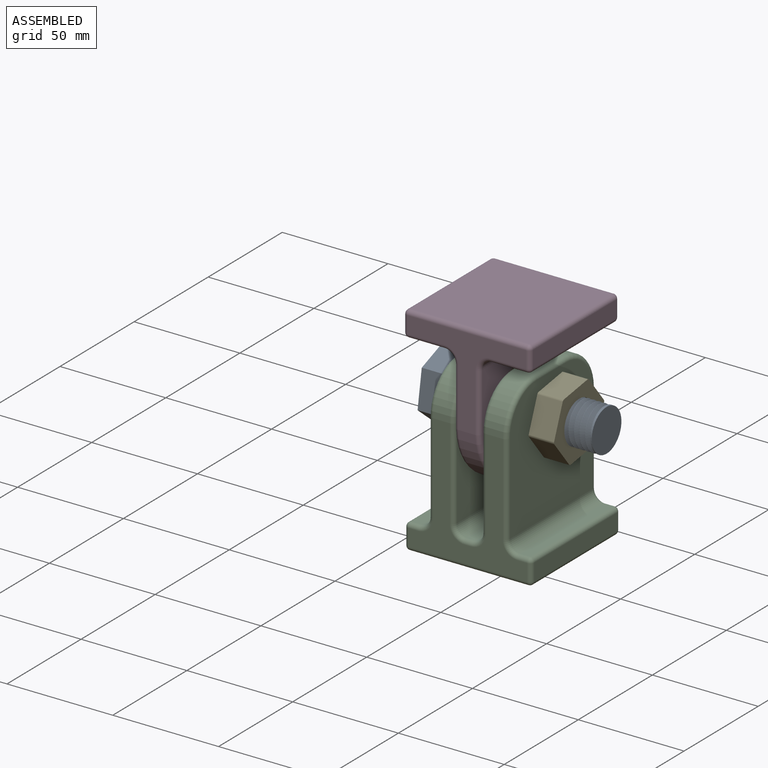
[diagram: assembled view]
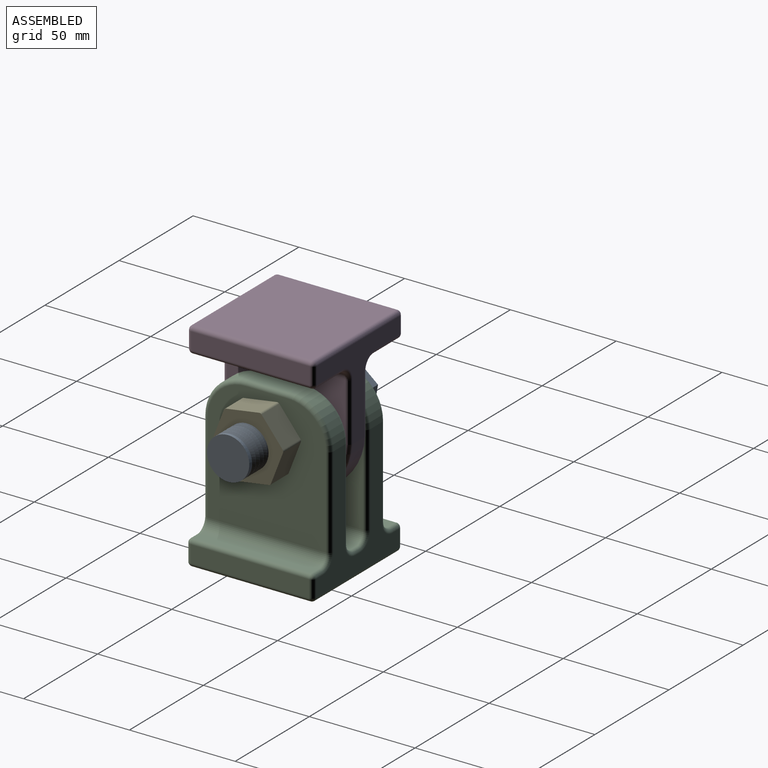
[diagram: assembled view, second angle]
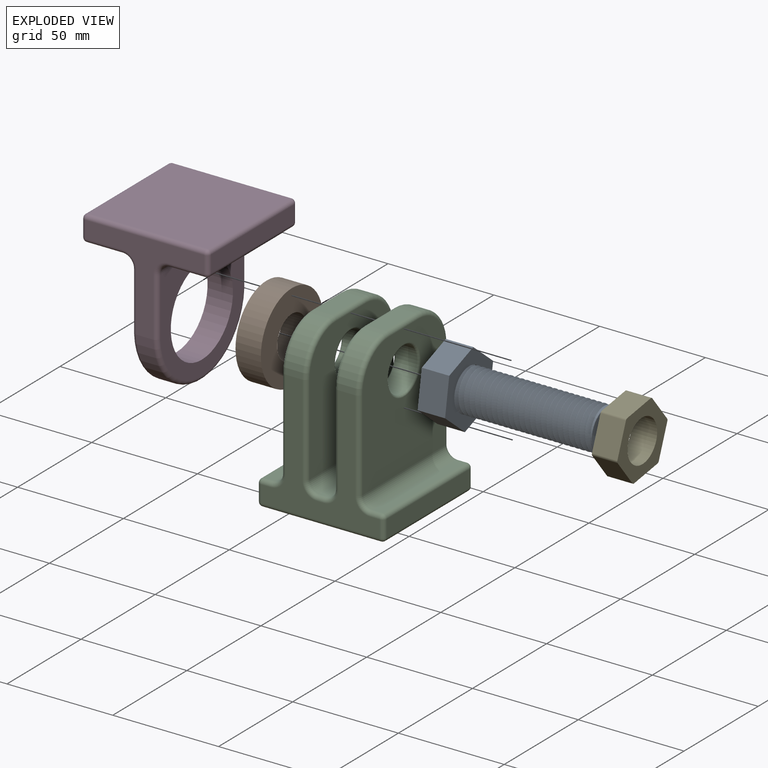
[diagram: exploded view]
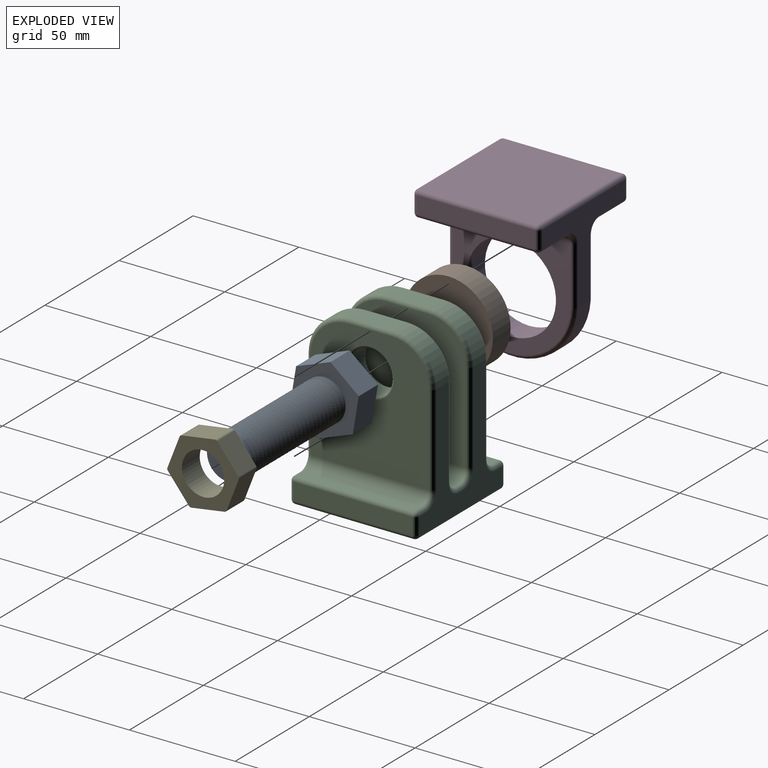
[diagram: exploded view, second angle]
ASSEMBLY  parts=5 mates=4
PART A: 15 faces, bbox 34.2x32.4x78 mm
  f0: cylinder r=10mm len=65mm, axis (0,0,1), area 1081.6mm2, adj f8,f9,f11,f12,f14
  f1: plane 17.09x13mm, normal (0.16,-0.99,0), area 225.2mm2, adj f2,f6,f7,f8
  f2: plane 16.21x13mm, normal (0.94,-0.35,0), area 225.2mm2, adj f1,f3,f7,f8
  f3: plane 13.39x13mm, normal (0.77,0.63,0), area 225.2mm2, adj f2,f4,f7,f8
  f4: plane 17.09x13mm, normal (-0.16,0.99,0), area 225.2mm2, adj f3,f5,f7,f8
  f5: plane 16.21x13mm, normal (-0.94,0.35,0), area 225.2mm2, adj f4,f6,f7,f8
  f6: plane 13.39x13mm, normal (-0.77,-0.63,0), area 225.2mm2, adj f1,f5,f7,f8
  f7: plane 34.18x32.42mm, normal (0,0,1), area 779.4mm2, adj f1,f2,f3,f4,f5,f6
  f8: plane 34.18x32.42mm, normal (0,0,-1), area 465.3mm2, adj f0,f1,f2,f3,f4,f5,f6,f13
  f9: plane 20x20mm, normal (0,0,-1), area 314.2mm2, adj f0
  f10: plane 2.5x2.17mm, normal (0,-1,0), area 2.7mm2, adj f12,f13,f14
  f11: plane 2.5x2.17mm, normal (0,1,0), area 2.7mm2, adj f0,f12,f14
  f12: bspline ~66.25x23.09mm, area 3495.3mm2, adj f0,f10,f11,f14
  f13: cylinder r=10mm len=20mm, axis (0,0,-1), area 75.5mm2, adj f8,f10,f14
  f14: bspline ~66.25x23.09mm, area 3495.3mm2, adj f0,f10,f11,f12,f13
PART B: 4 faces, bbox 42x42x12 mm
  f0: cylinder r=10mm len=20mm, axis (0,0,-1), area 754mm2, adj f2,f3
  f1: cylinder r=21mm len=42mm, axis (0,0,-1), area 1583.4mm2, adj f2,f3
  f2: plane 42x42mm, normal (0,0,1), area 1071.3mm2, adj f0,f1
  f3: plane 42x42mm, normal (0,0,-1), area 1071.3mm2, adj f0,f1
PART C: 80 faces, bbox 60x63.3x81.6 mm
  f0: plane 56x3mm, normal (0,0,1), area 168mm2, adj f21,f22,f31,f32
  f1: plane 56x4.5mm, normal (0,0,1), area 252mm2, adj f23,f64,f67,f68
  f2: plane 58x56mm, normal (0,-1,0), area 1290.1mm2, adj f17,f19,f28,f30,f32,f34,f36,f44
  f3: plane 56x8mm, normal (1,0,0), area 448mm2, adj f49,f52,f53,f54
  f4: plane 58x56mm, normal (0,1,0), area 1290.1mm2, adj f16,f18,f27,f29,f31,f33,f35,f43
  f5: plane 56x8mm, normal (-1,0,0), area 448mm2, adj f59,f62,f63,f64
  f6: plane 56x4.5mm, normal (0,0,1), area 252mm2, adj f20,f47,f48,f49
  f7: plane 56x56mm, normal (0,0,-1), area 3136mm2, adj f54,f57,f58,f59
  f8: plane 61x56mm, normal (1,0,0), area 2879.3mm2, adj f22,f35,f36,f37,f38,f39,f76
  f9: plane 61x56mm, normal (-1,0,0), area 2879.3mm2, adj f23,f71,f72,f73,f74,f75,f77
  f10: plane 20x8mm, normal (0,0,1), area 160mm2, adj f18,f19,f39,f75
  f11: plane 61x56mm, normal (1,0,0), area 2879.3mm2, adj f20,f40,f41,f42,f43,f44,f79
  f12: plane 61x56mm, normal (-1,0,0), area 2879.3mm2, adj f21,f24,f25,f26,f27,f28,f78
  f13: plane 20x8mm, normal (0,0,1), area 160mm2, adj f16,f17,f24,f40
  f14: cylinder r=10.25mm len=20.5mm, axis (1,0,0), area 644mm2, adj f78,f79
  f15: cylinder r=10.25mm len=20.5mm, axis (1,0,0), area 644mm2, adj f76,f77
  f16: cylinder r=20mm len=20mm, axis (1,0,0), area 251.3mm2, adj f4,f13,f25,f41
  f17: cylinder r=20mm len=20mm, axis (-1,0,0), area 251.3mm2, adj f2,f13,f26,f42
  f18: cylinder r=20mm len=20mm, axis (1,0,0), area 251.3mm2, adj f4,f10,f37,f73
  f19: cylinder r=20mm len=20mm, axis (-1,0,0), area 251.3mm2, adj f2,f10,f38,f74
  f20: cylinder r=5mm len=56mm, axis (0,-1,0), area 439.8mm2, adj f6,f11,f45,f46
  f21: cylinder r=5mm len=56mm, axis (0,1,0), area 439.8mm2, adj f0,f12,f29,f30
  f22: cylinder r=5mm len=56mm, axis (0,-1,0), area 439.8mm2, adj f0,f8,f33,f34
  f23: cylinder r=5mm len=56mm, axis (0,1,0), area 439.8mm2, adj f1,f9,f69,f70
  f24: cylinder r=2mm len=20mm, axis (0,1,0), area 62.8mm2, adj f12,f13,f25,f26
  f25: torus R=18mm, axis (1,0,0), area 95.1mm2, adj f12,f16,f24,f27
  f26: torus R=18mm, axis (1,0,0), area 95.1mm2, adj f12,f17,f24,f28
  f27: cylinder r=2mm len=43mm, axis (0,0,-1), area 135.1mm2, adj f4,f12,f25,f29
  f28: cylinder r=2mm len=43mm, axis (0,0,1), area 135.1mm2, adj f2,f12,f26,f30
  f29: torus R=7mm, axis (0,-1,0), area 28.3mm2, adj f4,f21,f27,f31
  f30: torus R=7mm, axis (0,-1,0), area 28.3mm2, adj f2,f21,f28,f32
  f31: cylinder r=2mm len=3mm, axis (1,0,0), area 9.4mm2, adj f0,f4,f29,f33
  f32: cylinder r=2mm len=3mm, axis (-1,0,0), area 9.4mm2, adj f0,f2,f30,f34
  f33: torus R=7mm, axis (0,-1,0), area 28.3mm2, adj f4,f22,f31,f35
  f34: torus R=7mm, axis (0,-1,0), area 28.3mm2, adj f2,f22,f32,f36
  f35: cylinder r=2mm len=43mm, axis (0,0,1), area 135.1mm2, adj f4,f8,f33,f37
  f36: cylinder r=2mm len=43mm, axis (0,0,-1), area 135.1mm2, adj f2,f8,f34,f38
  f37: torus R=18mm, axis (1,0,0), area 95.1mm2, adj f8,f18,f35,f39
  f38: torus R=18mm, axis (1,0,0), area 95.1mm2, adj f8,f19,f36,f39
  f39: cylinder r=2mm len=20mm, axis (0,-1,0), area 62.8mm2, adj f8,f10,f37,f38
  f40: cylinder r=2mm len=20mm, axis (0,-1,0), area 62.8mm2, adj f11,f13,f41,f42
  f41: torus R=18mm, axis (1,0,0), area 95.1mm2, adj f11,f16,f40,f43
  f42: torus R=18mm, axis (1,0,0), area 95.1mm2, adj f11,f17,f40,f44
  f43: cylinder r=2mm len=43mm, axis (0,0,1), area 135.1mm2, adj f4,f11,f41,f45
  f44: cylinder r=2mm len=43mm, axis (0,0,-1), area 135.1mm2, adj f2,f11,f42,f46
  f45: torus R=7mm, axis (0,-1,0), area 28.3mm2, adj f4,f20,f43,f47
  f46: torus R=7mm, axis (0,-1,0), area 28.3mm2, adj f2,f20,f44,f48
  f47: cylinder r=2mm len=4.5mm, axis (1,0,0), area 14.1mm2, adj f4,f6,f45,f50
  f48: cylinder r=2mm len=4.5mm, axis (-1,0,0), area 14.1mm2, adj f2,f6,f46,f51
  f49: cylinder r=2mm len=56mm, axis (0,-1,0), area 175.9mm2, adj f3,f6,f50,f51
  f50: sphere r=2mm, area 6.3mm2, adj f47,f49,f52
  f51: sphere r=2mm, area 6.3mm2, adj f48,f49,f53
  f52: cylinder r=2mm len=8mm, axis (0,0,-1), area 25.1mm2, adj f3,f4,f50,f55
  f53: cylinder r=2mm len=8mm, axis (0,0,1), area 25.1mm2, adj f2,f3,f51,f56
  f54: cylinder r=2mm len=56mm, axis (0,1,0), area 175.9mm2, adj f3,f7,f55,f56
  f55: sphere r=2mm, area 6.3mm2, adj f52,f54,f57
  f56: sphere r=2mm, area 6.3mm2, adj f53,f54,f58
  f57: cylinder r=2mm len=56mm, axis (-1,0,0), area 175.9mm2, adj f4,f7,f55,f60
  f58: cylinder r=2mm len=56mm, axis (1,0,0), area 175.9mm2, adj f2,f7,f56,f61
  f59: cylinder r=2mm len=56mm, axis (0,-1,0), area 175.9mm2, adj f5,f7,f60,f61
  f60: sphere r=2mm, area 6.3mm2, adj f57,f59,f62
  f61: sphere r=2mm, area 6.3mm2, adj f58,f59,f63
  f62: cylinder r=2mm len=8mm, axis (0,0,1), area 25.1mm2, adj f4,f5,f60,f65
  f63: cylinder r=2mm len=8mm, axis (0,0,-1), area 25.1mm2, adj f2,f5,f61,f66
  f64: cylinder r=2mm len=56mm, axis (0,1,0), area 175.9mm2, adj f1,f5,f65,f66
  f65: sphere r=2mm, area 6.3mm2, adj f62,f64,f67
  f66: sphere r=2mm, area 6.3mm2, adj f63,f64,f68
  f67: cylinder r=2mm len=4.5mm, axis (1,0,0), area 14.1mm2, adj f1,f4,f65,f69
  f68: cylinder r=2mm len=4.5mm, axis (-1,0,0), area 14.1mm2, adj f1,f2,f66,f70
  f69: torus R=7mm, axis (0,-1,0), area 28.3mm2, adj f4,f23,f67,f71
  f70: torus R=7mm, axis (0,-1,0), area 28.3mm2, adj f2,f23,f68,f72
  f71: cylinder r=2mm len=43mm, axis (0,0,-1), area 135.1mm2, adj f4,f9,f69,f73
  f72: cylinder r=2mm len=43mm, axis (0,0,1), area 135.1mm2, adj f2,f9,f70,f74
  f73: torus R=18mm, axis (1,0,0), area 95.1mm2, adj f9,f18,f71,f75
  f74: torus R=18mm, axis (1,0,0), area 95.1mm2, adj f9,f19,f72,f75
  f75: cylinder r=2mm len=20mm, axis (0,1,0), area 62.8mm2, adj f9,f10,f73,f74
  f76: torus R=11.25mm, axis (1,0,0), area 104.7mm2, adj f8,f15
  f77: torus R=11.25mm, axis (1,0,0), area 104.7mm2, adj f9,f15
  f78: torus R=11.25mm, axis (1,0,0), area 104.7mm2, adj f12,f14
  f79: torus R=11.25mm, axis (1,0,0), area 104.7mm2, adj f11,f14
PART D: 51 faces, bbox 60x64.9x75.5 mm
  f0: plane 56x54.04mm, normal (1,0,0), area 1305.3mm2, adj f9,f11,f24,f34,f35
  f1: plane 56x17mm, normal (0,0,-1), area 952mm2, adj f12,f30,f42,f48
  f2: plane 56x42.46mm, normal (0,-1,0), area 744.7mm2, adj f22,f23,f27,f33,f34,f43,f44,f48
  f3: plane 56x8mm, normal (1,0,0), area 448mm2, adj f14,f15,f21,f22
  f4: plane 56x42.46mm, normal (0,1,0), area 744.7mm2, adj f14,f16,f19,f20,f24,f29,f30,f31
  f5: plane 56x8mm, normal (-1,0,0), area 448mm2, adj f31,f32,f42,f43
  f6: plane 56x56mm, normal (0,0,1), area 3136mm2, adj f20,f21,f32,f33
  f7: plane 56x17mm, normal (0,0,-1), area 952mm2, adj f11,f15,f16,f23
  f8: plane 56x54.04mm, normal (-1,0,0), area 1305.3mm2, adj f9,f12,f37,f45,f49
  f9: cylinder r=21mm len=42mm, axis (-1,0,0), area 1583.4mm2, adj f0,f8
  f10: cylinder r=30.04mm len=59.99mm, axis (-1,0,0), area 730mm2, adj f35,f36,f44,f45
  f11: cylinder r=5mm len=56mm, axis (0,1,0), area 439.8mm2, adj f0,f7,f19,f27
  f12: cylinder r=5mm len=56mm, axis (0,-1,0), area 439.8mm2, adj f1,f8,f29,f50
  f13: sphere r=2mm, area 6.3mm2, adj f14,f15,f16
  f14: cylinder r=2mm len=8mm, axis (0,0,-1), area 25.1mm2, adj f3,f4,f13,f17
  f15: cylinder r=2mm len=56mm, axis (0,1,0), area 175.9mm2, adj f3,f7,f13,f18
  f16: cylinder r=2mm len=17mm, axis (-1,0,0), area 53.4mm2, adj f4,f7,f13,f19
  f17: sphere r=2mm, area 6.3mm2, adj f14,f20,f21
  f18: sphere r=2mm, area 6.3mm2, adj f15,f22,f23
  f19: torus R=7mm, axis (0,-1,0), area 28.3mm2, adj f4,f11,f16,f24
  f20: cylinder r=2mm len=56mm, axis (1,0,0), area 175.9mm2, adj f4,f6,f17,f25
  f21: cylinder r=2mm len=56mm, axis (0,-1,0), area 175.9mm2, adj f3,f6,f17,f26
  f22: cylinder r=2mm len=8mm, axis (0,0,1), area 25.1mm2, adj f2,f3,f18,f26
  f23: cylinder r=2mm len=17mm, axis (1,0,0), area 53.4mm2, adj f2,f7,f18,f27
  f24: cylinder r=2mm len=27.46mm, axis (0,0,-1), area 86.3mm2, adj f0,f4,f19,f28
  f25: sphere r=2mm, area 6.3mm2, adj f20,f31,f32
  f26: sphere r=2mm, area 6.3mm2, adj f21,f22,f33
  f27: torus R=7mm, axis (0,-1,0), area 28.3mm2, adj f2,f11,f23,f34
  f28: sphere r=2mm, area 0.2mm2, adj f24,f35,f36
  f29: torus R=7mm, axis (0,-1,0), area 28.3mm2, adj f4,f12,f30,f37
  f30: cylinder r=2mm len=17mm, axis (-1,0,0), area 53.4mm2, adj f1,f4,f29,f38
  f31: cylinder r=2mm len=8mm, axis (0,0,1), area 25.1mm2, adj f4,f5,f25,f38
  f32: cylinder r=2mm len=56mm, axis (0,1,0), area 175.9mm2, adj f5,f6,f25,f39
  f33: cylinder r=2mm len=56mm, axis (-1,0,0), area 175.9mm2, adj f2,f6,f26,f39
  f34: cylinder r=2mm len=27.46mm, axis (0,0,1), area 86.3mm2, adj f0,f2,f27,f40
  f35: torus R=28.04mm, axis (1,0,0), area 279.7mm2, adj f0,f10,f28,f40
  f36: cylinder r=2mm len=8mm, axis (-1,0,0), area 0.8mm2, adj f4,f10,f28,f41
  f37: cylinder r=2mm len=27.46mm, axis (0,0,1), area 86.3mm2, adj f4,f8,f29,f41
  f38: sphere r=2mm, area 6.3mm2, adj f30,f31,f42
  f39: sphere r=2mm, area 6.3mm2, adj f32,f33,f43
  f40: sphere r=2mm, area 0.2mm2, adj f34,f35,f44
  f41: sphere r=2mm, area 0.2mm2, adj f36,f37,f45
  f42: cylinder r=2mm len=56mm, axis (0,-1,0), area 175.9mm2, adj f1,f5,f38,f46
  f43: cylinder r=2mm len=8mm, axis (0,0,-1), area 25.1mm2, adj f2,f5,f39,f46
  f44: cylinder r=2mm len=8mm, axis (-1,0,0), area 0.8mm2, adj f2,f10,f40,f47
  f45: torus R=28.04mm, axis (1,0,0), area 279.7mm2, adj f8,f10,f41,f47
  f46: sphere r=2mm, area 6.3mm2, adj f42,f43,f48
  f47: sphere r=2mm, area 0.2mm2, adj f44,f45,f49
  f48: cylinder r=2mm len=17mm, axis (1,0,0), area 53.4mm2, adj f1,f2,f46,f50
  f49: cylinder r=2mm len=27.46mm, axis (0,0,-1), area 86.3mm2, adj f2,f8,f47,f50
  f50: torus R=7mm, axis (0,-1,0), area 28.3mm2, adj f2,f12,f48,f49
PART E: 15 faces, bbox 33.9x32.1x12 mm
  f0: plane 15.75x12mm, normal (0.15,-0.99,0), area 191.2mm2, adj f7,f8,f9,f14
  f1: plane 14.86x12mm, normal (0.93,-0.36,0), area 191.2mm2, adj f7,f8,f9,f10
  f2: plane 12.42x12mm, normal (0.78,0.63,0), area 191.2mm2, adj f7,f8,f10,f11
  f3: plane 15.75x12mm, normal (-0.15,0.99,0), area 191.2mm2, adj f7,f8,f11,f12
  f4: plane 14.86x12mm, normal (-0.93,0.36,0), area 191.2mm2, adj f7,f8,f12,f13
  f5: cylinder r=10mm len=20mm, axis (0,0,-1), area 754mm2, adj f7,f8
  f6: plane 12.42x12mm, normal (-0.78,-0.63,0), area 191.2mm2, adj f7,f8,f13,f14
  f7: plane 33.9x32.11mm, normal (0,0,1), area 464.8mm2, adj f0,f1,f2,f3,f4,f5,f6,f9
  f8: plane 33.9x32.11mm, normal (0,0,-1), area 464.8mm2, adj f0,f1,f2,f3,f4,f5,f6,f9
  f9: cylinder r=1.2mm len=12mm, axis (0,0,-1), area 15.1mm2, adj f0,f1,f7,f8
  f10: cylinder r=1.2mm len=12mm, axis (0,0,-1), area 15.1mm2, adj f1,f2,f7,f8
  f11: cylinder r=1.2mm len=12mm, axis (0,0,-1), area 15.1mm2, adj f2,f3,f7,f8
  f12: cylinder r=1.2mm len=12mm, axis (0,0,-1), area 15.1mm2, adj f3,f4,f7,f8
  f13: cylinder r=1.2mm len=12mm, axis (0,0,-1), area 15.1mm2, adj f4,f6,f7,f8
  f14: cylinder r=1.2mm len=12mm, axis (0,0,-1), area 15.1mm2, adj f0,f6,f7,f8
PLACE A rot(axis=(-0.71,0,0.71),180deg) t=(18.03,14.78,17.14)mm
PLACE B rot(axis=(-0.71,0,-0.71),180deg) t=(31.93,14.78,17.14)mm
PLACE C t=(38.43,14.78,-42.61)mm
PLACE D rot(axis=(0,0,-1),180deg) t=(37.93,14.78,48.14)mm
PLACE E rot(axis=(-0.58,0.58,-0.58),120deg) t=(58.03,14.78,17.14)mm
MATE fastened E.f5 <-> A.f0  axis (-1,0,0) through (58.03,14.78,17.14)mm
MATE fastened B.f0 <-> D.f9  axis (1,0,0) through (43.93,14.78,17.14)mm
MATE fastened B.f0 <-> C.f76  axis (-1,0,0) through (31.93,14.78,17.14)mm
MATE slider A.f0 <-> C.f77  axis (1,0,0) through (83.03,14.78,17.14)mm
